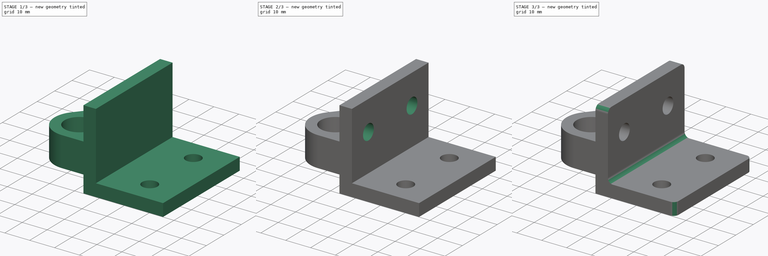
[diagram: build sequence overview — one tinted view per stage of 3, left to right]
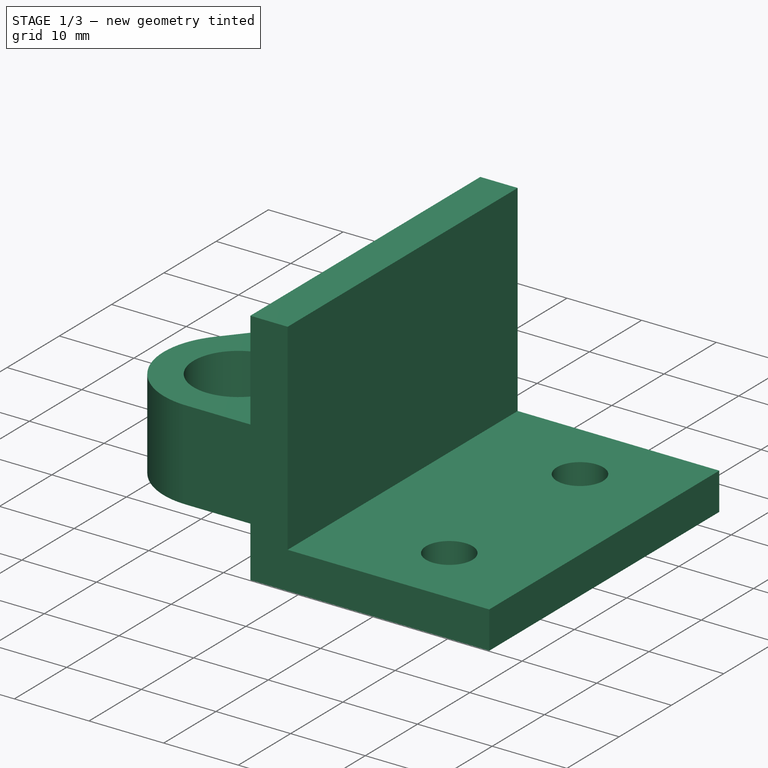
[diagram: stage 1 of 3 — iso view after this stage's code; geometry added in this stage tinted green]
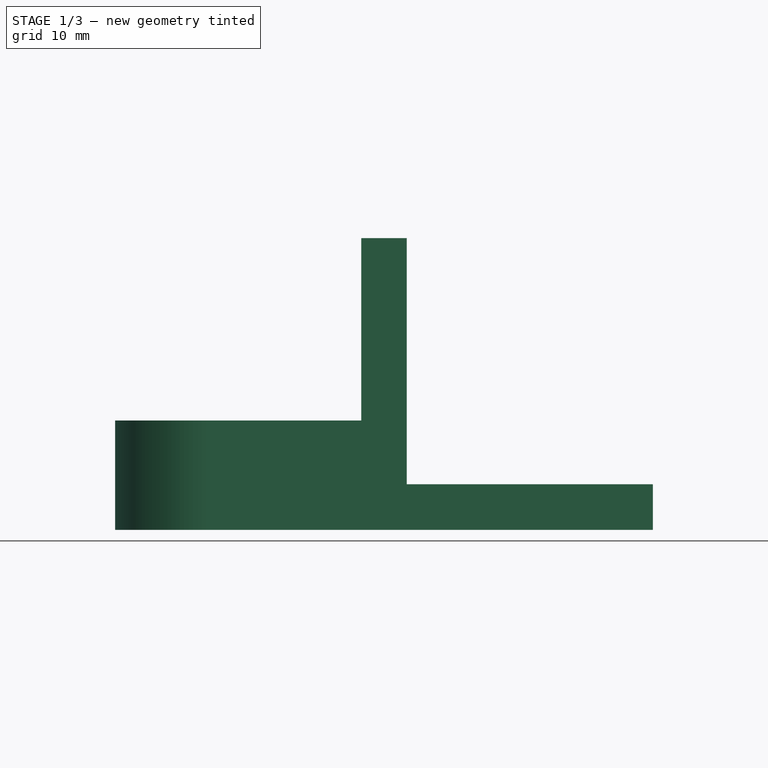
[diagram: stage 1 of 3 — front view after this stage's code; geometry added in this stage tinted green]
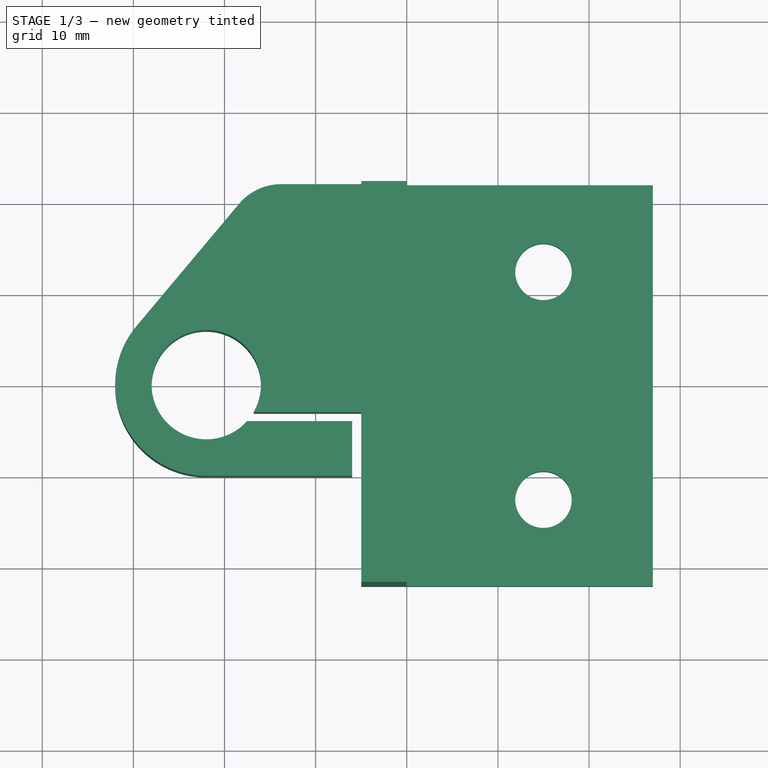
[diagram: stage 1 of 3 — top view after this stage's code; geometry added in this stage tinted green]
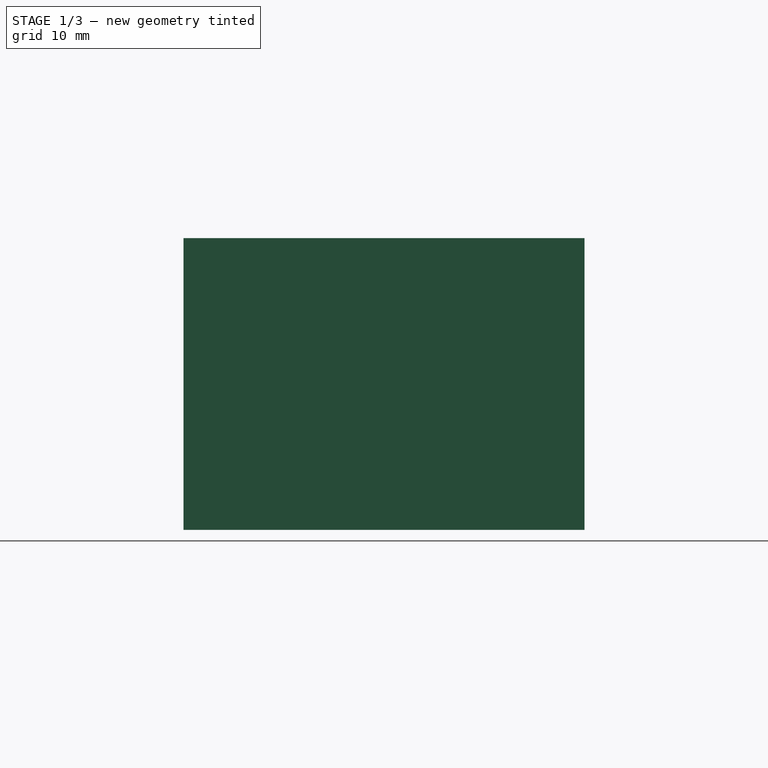
[diagram: stage 1 of 3 — right view after this stage's code; geometry added in this stage tinted green]
FCSTD DOCUMENT  (FreeCAD 0.19R18353 (Git))
Label: Z_Axis_Linear_Rail_Bracket_1.1
License: CreativeCommons Attribution
LicenseURL: http://creativecommons.org/licenses/by/4.0/
objects: Sketcher::SketchObject×5, PartDesign::Pocket×4, PartDesign::Pad×1, PartDesign::Fillet×1, PartDesign::Body×1
note: 17 computed .brp shape members not serialized (recipe doc carries the construction recipe); baked Part::Feature solids carry a one-line shape summary decoded from their .brp

FEATURE [Sketcher::SketchObject] Sketch
  MapMode = 5
  Placement = pos=(0,0,0) rot=(1,0,0;1.5708rad)
  Support = -> [XZ_Plane]
  sketch-geometry (8):
    g0: LineSegment StartX=0 StartY=27 StartZ=0 EndX=0 EndY=0 EndZ=0
    g1: LineSegment StartX=0 StartY=0 StartZ=0 EndX=27 EndY=0 EndZ=0
    g2: LineSegment StartX=27 StartY=0 StartZ=0 EndX=27 EndY=-5 EndZ=0
    g3: LineSegment StartX=-5 StartY=7 StartZ=0 EndX=-5 EndY=27 EndZ=0
    g4: LineSegment StartX=-5 StartY=27 StartZ=0 EndX=0 EndY=27 EndZ=0
    g5: LineSegment StartX=-32 StartY=7 StartZ=0 EndX=-5 EndY=7 EndZ=0
    g6: LineSegment StartX=-32 StartY=-5 StartZ=0 EndX=-32 EndY=7 EndZ=0
    g7: LineSegment StartX=-32 StartY=-5 StartZ=0 EndX=27 EndY=-5 EndZ=0
  constraints (23):
    c: Vertical(g0)
    c: Coincident(g0,g1)
    c: Horizontal(g1)
    c: Coincident(g1,g2)
    c: Vertical(g2)
    c: Vertical(g3)
    c: Coincident(g3,g4)
    c: Horizontal(g4)
    c: Coincident(g0,g4)
    c: Equal(g4,g2)
    c: Equal(g1,g0)
    c: Coincident(g0,g-1)
    c: DistanceY(g0,g0) = 27
    c: DistanceY(g2,g2) = 5
    c: Coincident(g6,g5)
    c: Horizontal(g5)
    c: Vertical(g6)
    c: DistanceY(g6,g6) = 12
    c: Horizontal(g7)
    c: Coincident(g7,g2)
    c: Coincident(g7,g6)
    c: DistanceX(g6,g0) = 32
    c: Coincident(g3,g5)
FEATURE [PartDesign::Pad] Pad
  Length = 44
  Length2 = 100
  Midplane = true
  Placement = pos=(0,0,0) rot=(1,0,0;1.5708rad)
  Profile = -> Sketch
  Refine = true
  Type = 0
FEATURE [Sketcher::SketchObject] Sketch001
  ExternalGeometry = -> [Pad]
  MapMode = 5
  Support = -> [XY_Plane]
  expr: Constraints[5] = 32 - 10
  sketch-geometry (15):
    g0: Circle CenterX=15 CenterY=12.5 CenterZ=0 NormalX=0 NormalY=0 NormalZ=1 AngleXU=0 Radius=3.1
    g1: Circle CenterX=15 CenterY=-12.5 CenterZ=0 NormalX=0 NormalY=0 NormalZ=1 AngleXU=0 Radius=3.1
    g2: ArcOfCircle CenterX=-22 CenterY=0 CenterZ=0 NormalX=0 NormalY=0 NormalZ=1 AngleXU=0 Radius=6 StartAngle=5.75959 EndAngle=11.8366
    g3: LineSegment StartX=-6 StartY=-10 StartZ=0 EndX=-22 EndY=-10 EndZ=0
    g4: LineSegment StartX=-16.8038 StartY=-3 StartZ=0 EndX=-5 EndY=-3 EndZ=0
    g5: LineSegment StartX=-6 StartY=-4 StartZ=0 EndX=-6 EndY=-10 EndZ=0
    g6: LineSegment StartX=-6 StartY=-4 StartZ=0 EndX=-17.5279 EndY=-4 EndZ=0
    g7: ArcOfCircle CenterX=-22 CenterY=0 CenterZ=0 NormalX=0 NormalY=0 NormalZ=1 AngleXU=0 Radius=10 StartAngle=2.44346 EndAngle=4.71239
    g8: LineSegment StartX=-18.3923 StartY=19.8567 StartZ=0 EndX=-29.6604 EndY=6.42788 EndZ=0
    g9: LineSegment StartX=-40.3391 StartY=28.7992 StartZ=0 EndX=-40.3391 EndY=-28.9583 EndZ=0
    g10: LineSegment StartX=-40.3391 StartY=-28.9583 StartZ=0 EndX=-5 EndY=-28.9583 EndZ=0
    g11: LineSegment StartX=-5 StartY=-28.9583 StartZ=0 EndX=-5 EndY=-3 EndZ=0
    g12: LineSegment StartX=-13.7961 StartY=28.7992 StartZ=0 EndX=-40.3391 EndY=28.7992 EndZ=0
    g13: ArcOfCircle CenterX=-13.796 CenterY=16 CenterZ=0 NormalX=0 NormalY=0 NormalZ=1 AngleXU=0 Radius=6 StartAngle=1.5708 EndAngle=2.44346
    g14: LineSegment StartX=-13.7961 StartY=22 StartZ=0 EndX=-13.7961 EndY=28.7992 EndZ=0
  constraints (41):
    c: Diameter(g0) = 6.2
    c: DistanceY(g1,g0) = 25
    c: Symmetric(g0,g1,g-1)
    c: DistanceX(g-1,g1) = 15
    c: PointOnObject(g2,g-1)
    c: DistanceX(g2,g-1) = 22
    c: Horizontal(g3)
    c: Horizontal(g4)
    c: Vertical(g5)
    c: Coincident(g6,g5)
    c: Horizontal(g6)
    c: DistanceY(g5,g4) = 1
    c: Coincident(g2,g4)
    c: Coincident(g2,g6)
    c: DistanceX(g5,g4) = 1
    c: Coincident(g5,g3)
    c: Coincident(g7,g2)
    c: DistanceY(g3,g5) = 6
    c: Angle(g-1,g8) = 0.872665
    c: Tangent(g7,g8) = -1.5708
    c: Coincident(g3,g7)
    c: Equal(g1,g0)
    c: Diameter(g2) = 12
    c: Vertical(g3,g2)
    c: DistanceY(g3,g2) = 10
    c: Vertical(g9)
    c: Coincident(g9,g10)
    c: Horizontal(g10)
    c: Coincident(g10,g11)
    c: Vertical(g11)
    c: Coincident(g11,g4)
    c: PointOnObject(g4,g-4)
    c: Horizontal(g12)
    c: Coincident(g9,g12)
    c: PointOnObject(g13,g-3)
    c: Tangent(g13,g-3)
    c: Tangent(g8,g13) = -1.5708
    c: Coincident(g14,g13)
    c: Coincident(g14,g12)
    c: Vertical(g14)
    c: Diameter(g13) = 12
FEATURE [PartDesign::Pocket] Pocket
  BaseFeature = -> Pad
  Length = 5
  Length2 = 100
  Midplane = true
  Placement = pos=(0,0,0) rot=(1,0,0;1.5708rad)
  Profile = -> Sketch001
  Refine = true
  Type = 1
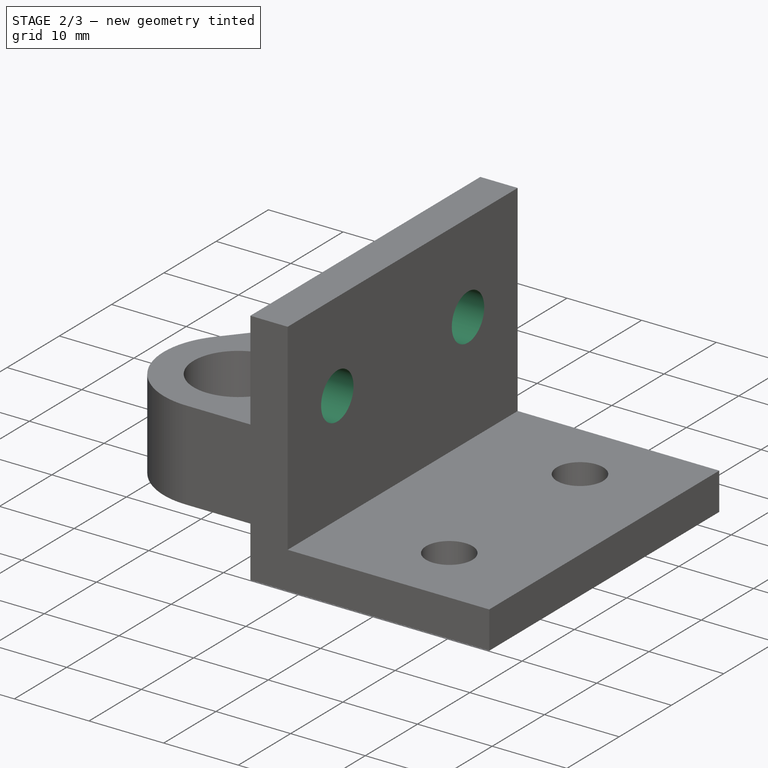
[diagram: stage 2 of 3 — iso view after this stage's code; geometry added in this stage tinted green]
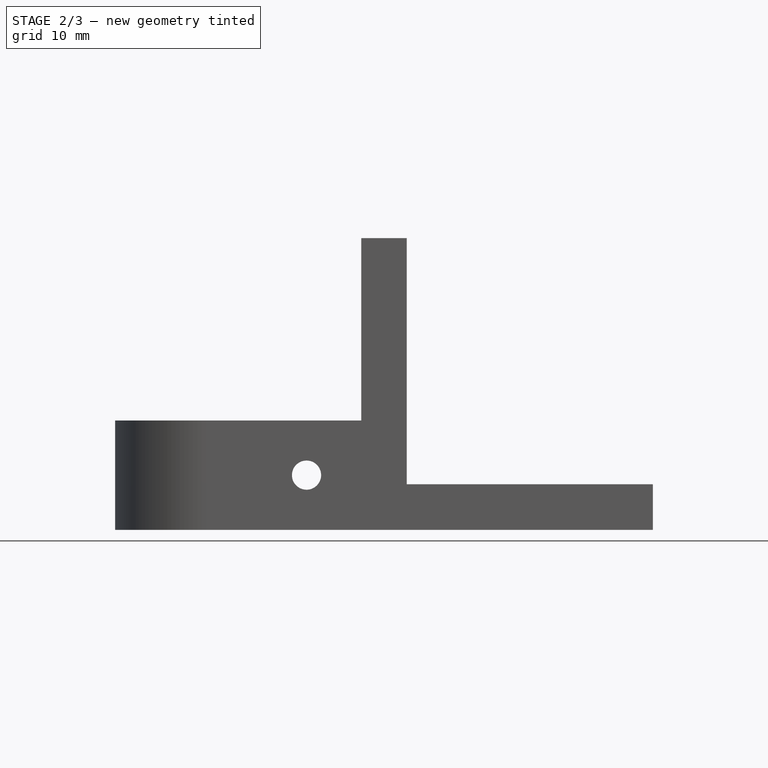
[diagram: stage 2 of 3 — front view after this stage's code; geometry added in this stage tinted green]
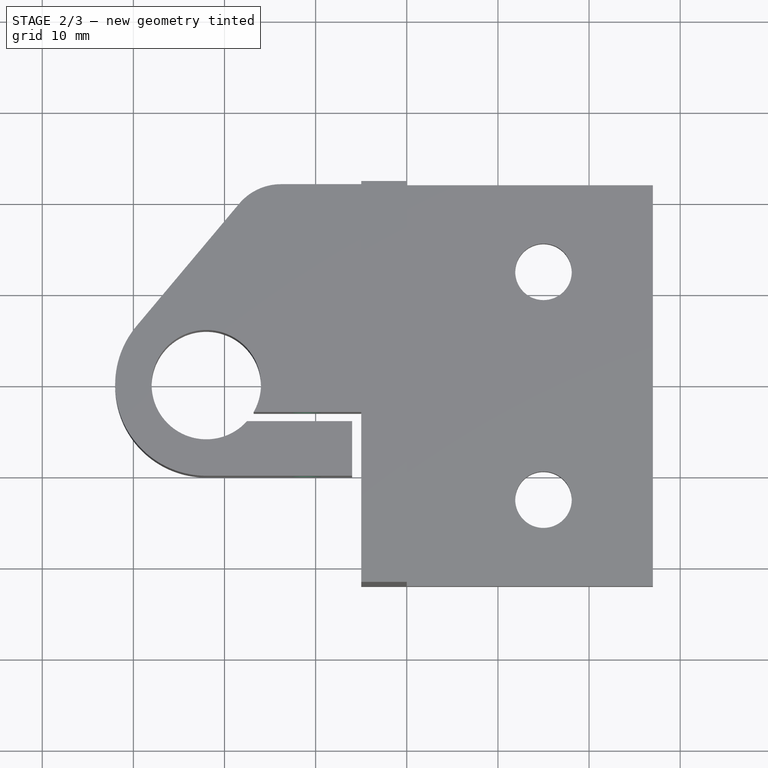
[diagram: stage 2 of 3 — top view after this stage's code; geometry added in this stage tinted green]
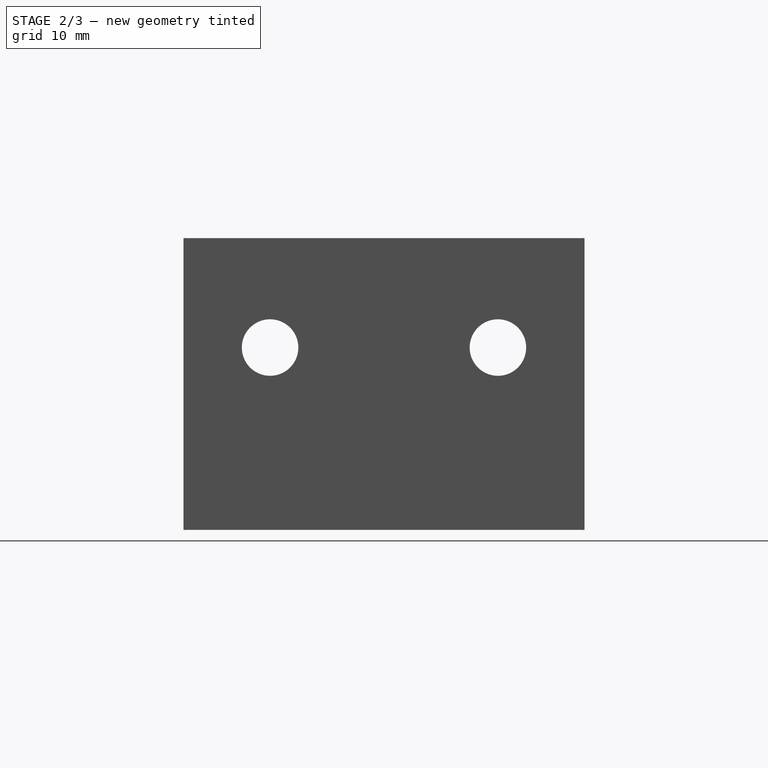
[diagram: stage 2 of 3 — right view after this stage's code; geometry added in this stage tinted green]
FEATURE [Sketcher::SketchObject] Sketch002
  MapMode = 5
  Placement = pos=(0,0,0) rot=(0.57735,0.57735,0.57735;2.0944rad)
  Support = -> [YZ_Plane]
  sketch-geometry (2):
    g0: Circle CenterX=-12.5 CenterY=15 CenterZ=0 NormalX=0 NormalY=0 NormalZ=1 AngleXU=0 Radius=3.1
    g1: Circle CenterX=12.5 CenterY=15 CenterZ=0 NormalX=0 NormalY=0 NormalZ=1 AngleXU=0 Radius=3.1
  constraints (5):
    c: Equal(g0,g1)
    c: Diameter(g0) = 6.2
    c: Symmetric(g0,g1,g-2)
    c: DistanceX(g0,g1) = 25
    c: DistanceY(g-1,g1) = 15
FEATURE [PartDesign::Pocket] Pocket001
  BaseFeature = -> Pocket
  Length = 5
  Length2 = 100
  Placement = pos=(0,0,0) rot=(1,0,0;1.5708rad)
  Profile = -> Sketch002
  Refine = true
  Type = 0
FEATURE [Sketcher::SketchObject] Sketch003
  MapMode = 5
  Placement = pos=(0,22,0) rot=(-1,0,0;1.5708rad)
  Support = -> [Pocket001]
  sketch-geometry (1):
    g0: Circle CenterX=-11 CenterY=-1 CenterZ=0 NormalX=0 NormalY=0 NormalZ=1 AngleXU=0 Radius=1.6
  constraints (3):
    c: Diameter(g0) = 3.2
    c: DistanceX(g0,g-1) = 11
    c: DistanceY(g0,g-1) = 1
FEATURE [PartDesign::Pocket] Pocket002
  BaseFeature = -> Pocket001
  Length = 5
  Length2 = 100
  Placement = pos=(0,0,0) rot=(1,0,0;1.5708rad)
  Profile = -> Sketch003
  Refine = true
  Type = 1
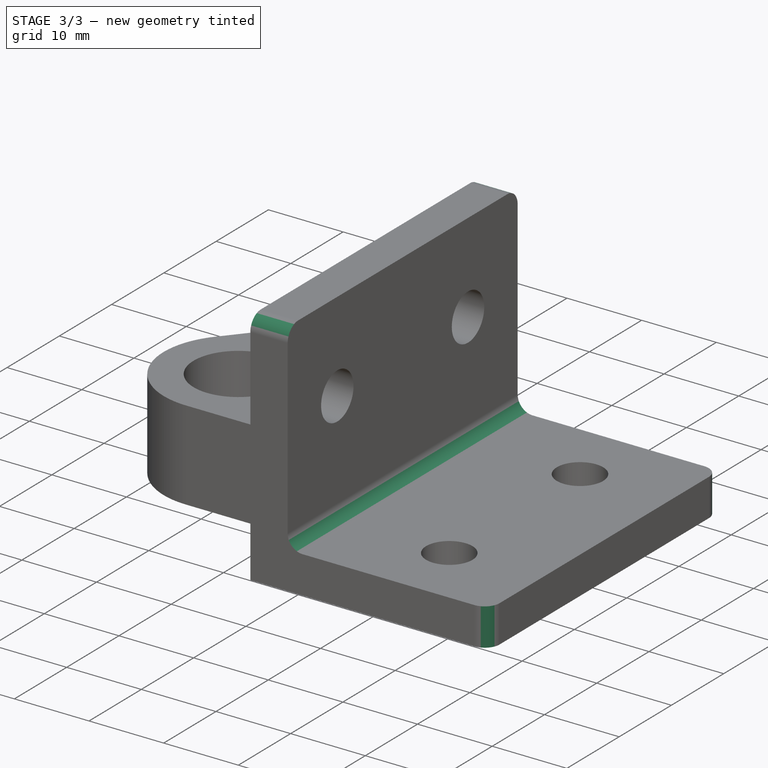
[diagram: stage 3 of 3 — iso view after this stage's code; geometry added in this stage tinted green]
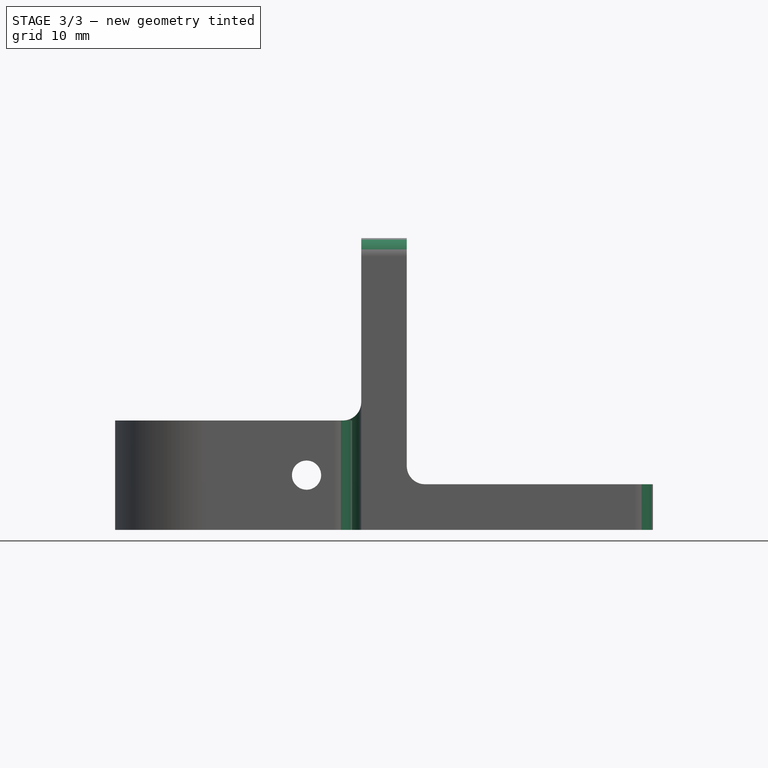
[diagram: stage 3 of 3 — front view after this stage's code; geometry added in this stage tinted green]
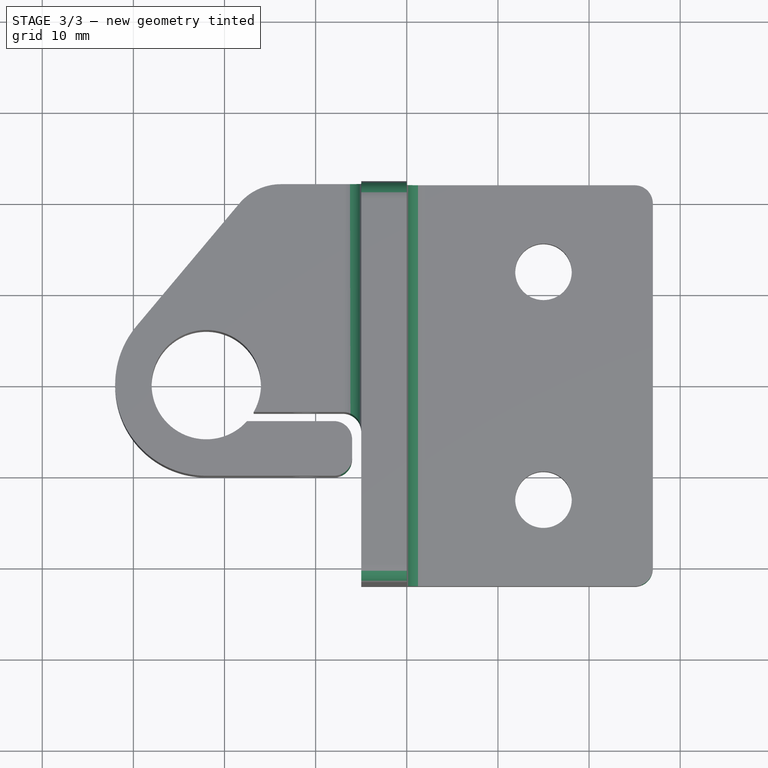
[diagram: stage 3 of 3 — top view after this stage's code; geometry added in this stage tinted green]
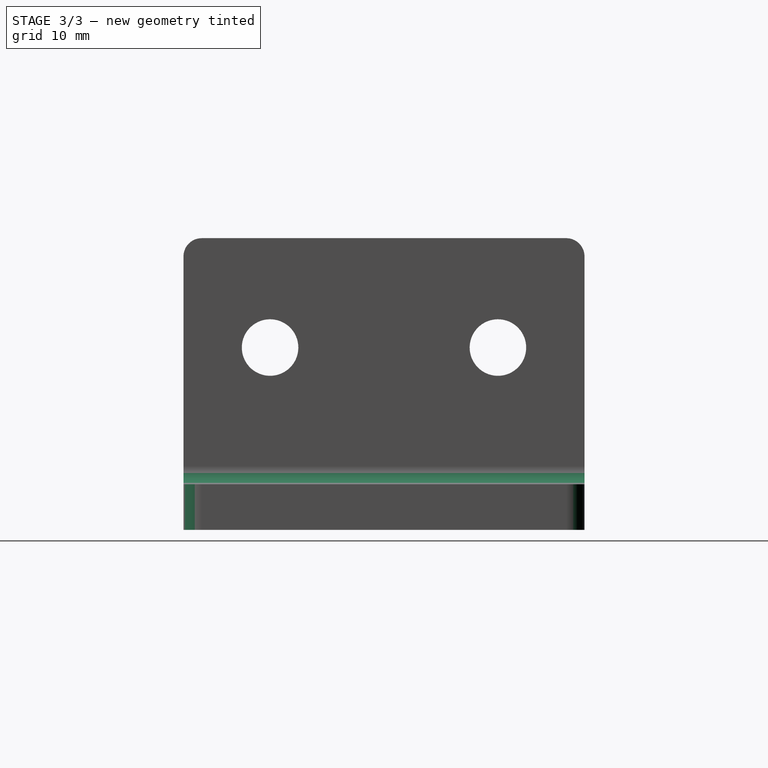
[diagram: stage 3 of 3 — right view after this stage's code; geometry added in this stage tinted green]
FEATURE [PartDesign::Fillet] Fillet
  Base = -> Pocket002 [Edge38,Edge41,Edge28,Edge5,Edge50,Edge21,Edge51,Edge59,Edge25]
  BaseFeature = -> Pocket002
  Placement = pos=(0,0,0) rot=(1,0,0;1.5708rad)
  Radius = 2
FEATURE [Sketcher::SketchObject] Sketch004
  ExternalGeometry = -> [Fillet]
  MapMode = 5
  Placement = pos=(0,22,0) rot=(-1,0,0;1.5708rad)
  Support = -> [Fillet]
  sketch-geometry (1):
    g0: Circle CenterX=-11 CenterY=-1 CenterZ=0 NormalX=0 NormalY=0 NormalZ=1 AngleXU=0 Radius=1.95
  constraints (2):
    c: Diameter(g0) = 3.9
    c: Coincident(g0,g-3)
FEATURE [PartDesign::Pocket] Pocket003
  BaseFeature = -> Fillet
  Length = 5
  Length2 = 100
  Placement = pos=(0,0,0) rot=(1,0,0;1.5708rad)
  Profile = -> Sketch004
  Refine = true
  Type = 0
FEATURE [PartDesign::Body] Body
  Group = -> [Sketch,Pad,Sketch001,Pocket,Sketch002,Pocket001,Sketch003,Pocket002,Fillet,Sketch004,Pocket003]
  Origin = -> Origin
  Tip = -> Pocket003
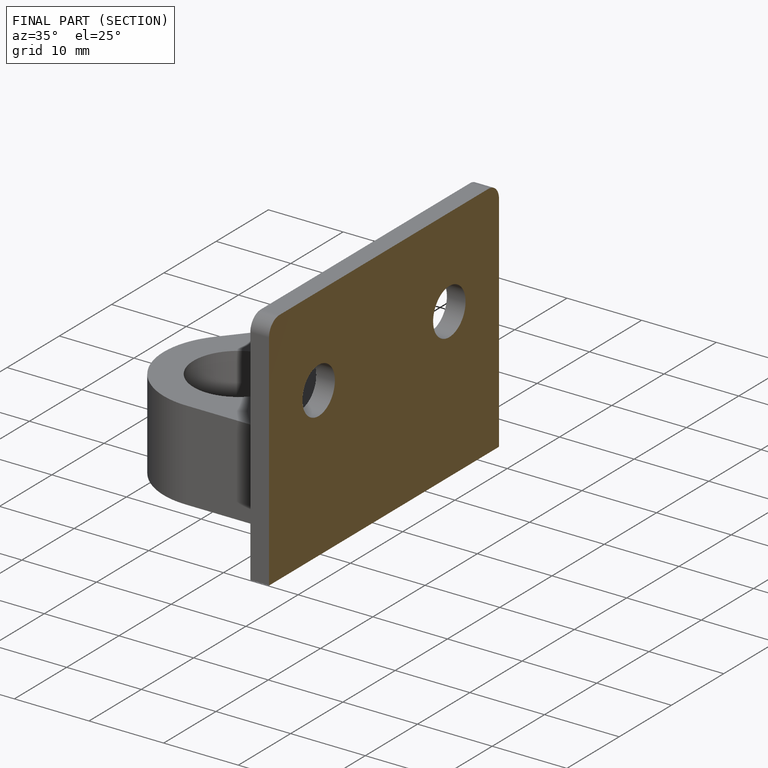
[diagram: finished part — half-section view (interior)]
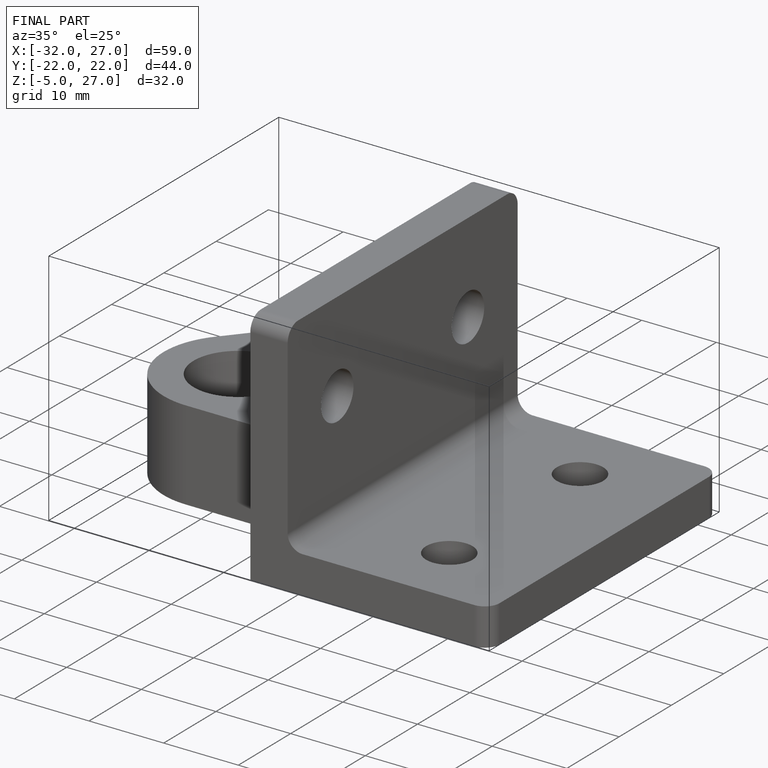
[diagram: finished part — iso view with bounding-box wireframe]
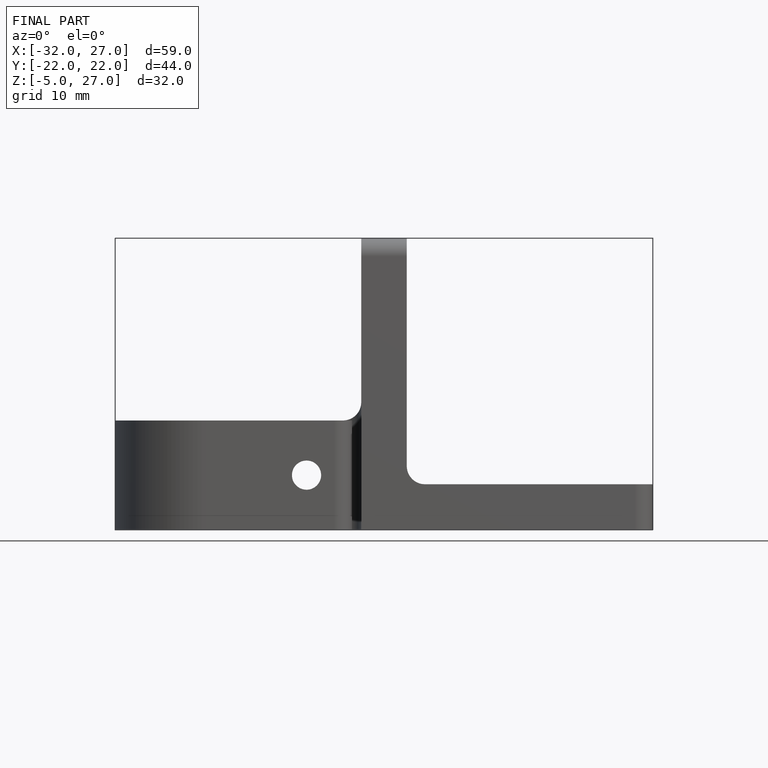
[diagram: finished part — front view with bounding-box wireframe]
